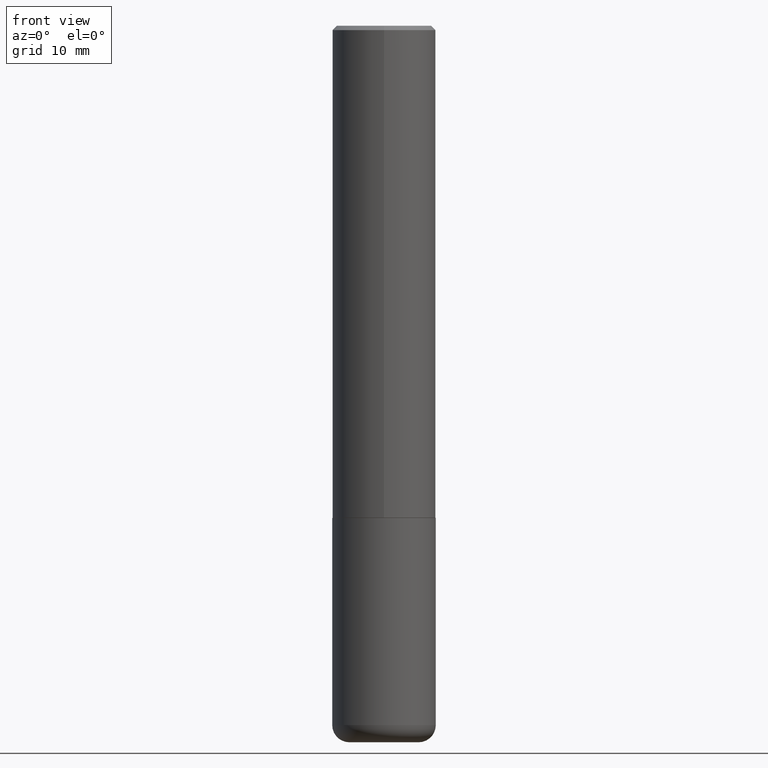
[diagram: clean part render]
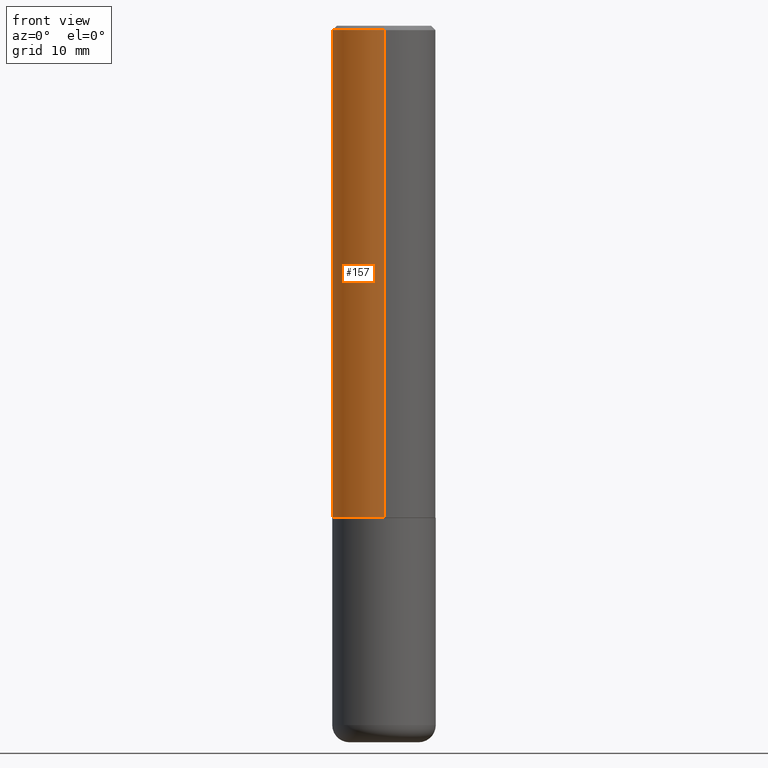
[diagram: same view with one face highlighted and labeled with its STEP entity id]
A machine part, front view. The second image highlights one B-rep face of the part: STEP entity #157.
In plain terms, the highlighted cylindrical surface (partial cylindrical patch) has radius 5.9995 mm, axis along (-0, 0, 1).
Its self-contained STEP definition (entity closure, byte-faithful):
#1 = EDGE_LOOP ( 'NONE', ( #177, #71, #389, #404 ) ) ;
#10 = CARTESIAN_POINT ( 'NONE',  ( -1.620449627073635276E-15, -0.2362000000000001043, -0.01999999999999925449 ) ) ;
#22 = CIRCLE ( 'NONE', #372, 0.2362000000000002986 ) ;
#33 = EDGE_CURVE ( 'NONE', #55, #298, #282, .T. ) ;
#55 = VERTEX_POINT ( 'NONE', #407 ) ;
#66 = VERTEX_POINT ( 'NONE', #10 ) ;
#71 = ORIENTED_EDGE ( 'NONE', *, *, #209, .T. ) ;
#75 = CARTESIAN_POINT ( 'NONE',  ( 0.000000000000000000, 0.000000000000000000, 0.000000000000000000 ) ) ;
#87 = DIRECTION ( 'NONE',  ( -2.448559348628265803E-29, 3.487055506161832692E-15, 1.000000000000000000 ) ) ;
#92 = DIRECTION ( 'NONE',  ( -2.448559348628265803E-29, 3.487055506161832692E-15, 1.000000000000000000 ) ) ;
#107 = CYLINDRICAL_SURFACE ( 'NONE', #310, 0.2362000000000001598 ) ;
#123 = DIRECTION ( 'NONE',  ( -6.982962677686265922E-15, -1.000000000000000000, 3.469747663417772663E-15 ) ) ;
#157 = ADVANCED_FACE ( 'NONE', ( #400 ), #107, .T. ) ;
#177 = ORIENTED_EDGE ( 'NONE', *, *, #33, .F. ) ;
#182 = CARTESIAN_POINT ( 'NONE',  ( 1.678301941865357577E-15, 0.2362000000000001598, -8.236425105554254759E-16 ) ) ;
#194 = CARTESIAN_POINT ( 'NONE',  ( 5.492363474908063915E-29, -7.821814205871606912E-15, -2.243100000000000094 ) ) ;
#209 = EDGE_CURVE ( 'NONE', #55, #376, #22, .T. ) ;
#215 = DIRECTION ( 'NONE',  ( -2.448559348628265803E-29, 3.487055506161832692E-15, 1.000000000000000000 ) ) ;
#235 = LINE ( 'NONE', #269, #394 ) ;
#251 = CARTESIAN_POINT ( 'NONE',  ( -1.649375784469443277E-15, -0.2362000000000081257, -2.243099999999999206 ) ) ;
#259 = CARTESIAN_POINT ( 'NONE',  ( 4.897118697256550314E-31, -6.974111012323692057E-17, -0.02000000000000007674 ) ) ;
#269 = CARTESIAN_POINT ( 'NONE',  ( -1.649375784469497117E-15, -0.2362000000000001598, 8.236425105554254759E-16 ) ) ;
#274 = DIRECTION ( 'NONE',  ( -2.448559348628265803E-29, 3.487055506161832692E-15, 1.000000000000000000 ) ) ;
#282 = LINE ( 'NONE', #182, #385 ) ;
#294 = AXIS2_PLACEMENT_3D ( 'NONE', #259, #92, #349 ) ;
#297 = DIRECTION ( 'NONE',  ( -2.448559348628265803E-29, 3.487055506161832692E-15, 1.000000000000000000 ) ) ;
#298 = VERTEX_POINT ( 'NONE', #393 ) ;
#310 = AXIS2_PLACEMENT_3D ( 'NONE', #75, #215, #312 ) ;
#312 = DIRECTION ( 'NONE',  ( -6.982962677686265922E-15, -1.000000000000000000, 3.487055506161832692E-15 ) ) ;
#349 = DIRECTION ( 'NONE',  ( -6.982962677686265922E-15, -1.000000000000000000, 3.487819265831411350E-15 ) ) ;
#365 = EDGE_CURVE ( 'NONE', #298, #66, #379, .T. ) ;
#372 = AXIS2_PLACEMENT_3D ( 'NONE', #194, #87, #123 ) ;
#376 = VERTEX_POINT ( 'NONE', #251 ) ;
#379 = CIRCLE ( 'NONE', #294, 0.2362000000000000210 ) ;
#385 = VECTOR ( 'NONE', #274, 39.37007874015748143 ) ;
#389 = ORIENTED_EDGE ( 'NONE', *, *, #391, .T. ) ;
#391 = EDGE_CURVE ( 'NONE', #376, #66, #235, .T. ) ;
#393 = CARTESIAN_POINT ( 'NONE',  ( 1.649375784469496722E-15, 0.2361999999999999655, -0.02000000000000090247 ) ) ;
#394 = VECTOR ( 'NONE', #297, 39.37007874015748143 ) ;
#400 = FACE_OUTER_BOUND ( 'NONE', #1, .T. ) ;
#404 = ORIENTED_EDGE ( 'NONE', *, *, #365, .F. ) ;
#407 = CARTESIAN_POINT ( 'NONE',  ( 1.678301941865385779E-15, 0.2361999999999924715, -2.243100000000000982 ) ) ;